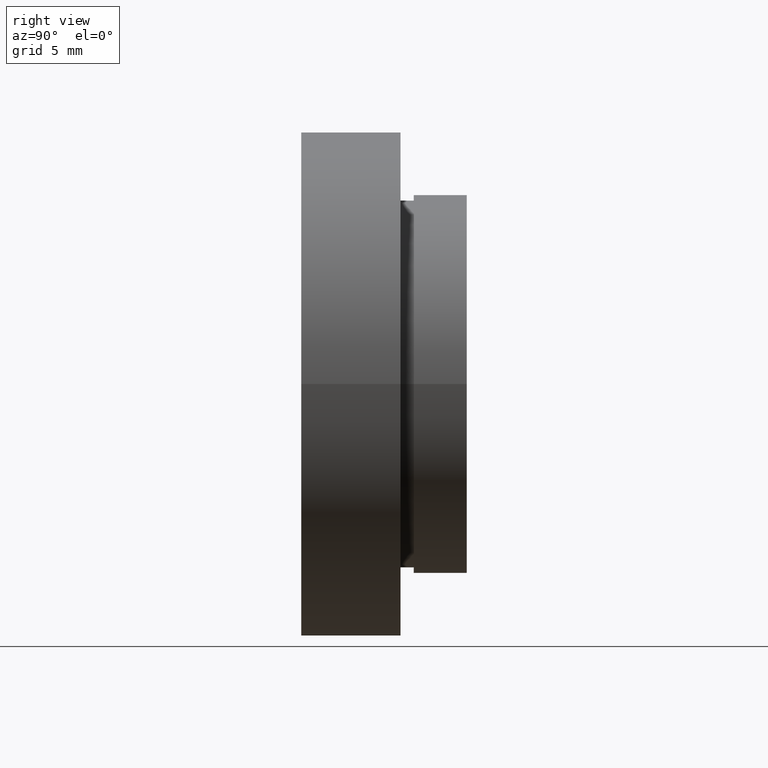
[diagram: clean part render]
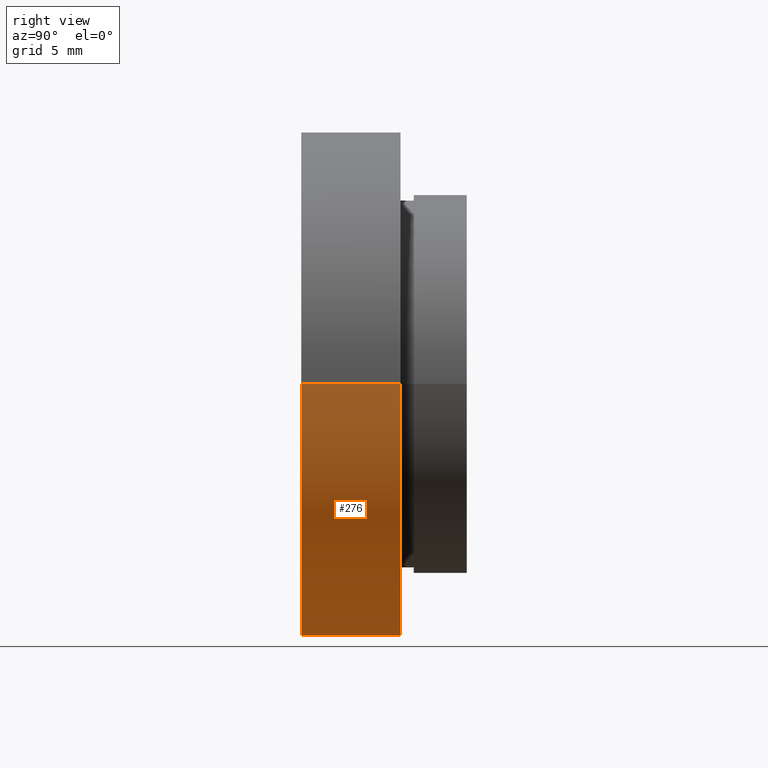
[diagram: same view with one face highlighted and labeled with its STEP entity id]
A machine part, right view. The second image highlights one B-rep face of the part: STEP entity #276.
In plain terms, the highlighted cylindrical surface (partial cylindrical patch) has radius 19.05 mm, axis along (-0, 1, -0).
Its self-contained STEP definition (entity closure, byte-faithful):
#5 = CARTESIAN_POINT ( 'NONE',  ( 19.05000000000000400, -1.136494799577910300E-015, 2.332952152375708400E-015 ) ) ;
#14 = ORIENTED_EDGE ( 'NONE', *, *, #306, .T. ) ;
#32 = CYLINDRICAL_SURFACE ( 'NONE', #153, 19.05000000000000400 ) ;
#55 = ORIENTED_EDGE ( 'NONE', *, *, #564, .F. ) ;
#77 = LINE ( 'NONE', #567, #282 ) ;
#87 = CARTESIAN_POINT ( 'NONE',  ( 1.149455719078123100E-015, 7.499999999999996400, 0.0000000000000000000 ) ) ;
#92 = DIRECTION ( 'NONE',  ( -1.224646799147351000E-016, 1.000000000000000000, -0.0000000000000000000 ) ) ;
#94 = LINE ( 'NONE', #618, #586 ) ;
#105 = ORIENTED_EDGE ( 'NONE', *, *, #588, .T. ) ;
#119 = VERTEX_POINT ( 'NONE', #372 ) ;
#128 = EDGE_CURVE ( 'NONE', #326, #589, #569, .T. ) ;
#136 = DIRECTION ( 'NONE',  ( -1.000000000000000000, -1.365923996832131400E-016, 0.0000000000000000000 ) ) ;
#153 = AXIS2_PLACEMENT_3D ( 'NONE', #432, #201, #571 ) ;
#161 = FACE_OUTER_BOUND ( 'NONE', #270, .T. ) ;
#201 = DIRECTION ( 'NONE',  ( -1.224646799147351000E-016, 1.000000000000000000, -0.0000000000000000000 ) ) ;
#252 = AXIS2_PLACEMENT_3D ( 'NONE', #446, #535, #390 ) ;
#270 = EDGE_LOOP ( 'NONE', ( #55, #14, #105, #612 ) ) ;
#276 = ADVANCED_FACE ( 'NONE', ( #161 ), #32, .T. ) ;
#282 = VECTOR ( 'NONE', #616, 1000.000000000000000 ) ;
#306 = EDGE_CURVE ( 'NONE', #347, #119, #374, .T. ) ;
#326 = VERTEX_POINT ( 'NONE', #439 ) ;
#347 = VERTEX_POINT ( 'NONE', #5 ) ;
#372 = CARTESIAN_POINT ( 'NONE',  ( -19.04999999999999700, -5.802399104329318300E-015, 0.0000000000000000000 ) ) ;
#374 = CIRCLE ( 'NONE', #252, 19.05000000000000100 ) ;
#390 = DIRECTION ( 'NONE',  ( -1.000000000000000000, -1.224646799147351200E-016, 0.0000000000000000000 ) ) ;
#426 = DIRECTION ( 'NONE',  ( -1.224646799147351000E-016, 1.000000000000000000, -0.0000000000000000000 ) ) ;
#432 = CARTESIAN_POINT ( 'NONE',  ( 0.0000000000000000000, 16.88601823708207700, 0.0000000000000000000 ) ) ;
#439 = CARTESIAN_POINT ( 'NONE',  ( 19.05000000000000400, 7.499999999999999100, 2.332952152375708400E-015 ) ) ;
#446 = CARTESIAN_POINT ( 'NONE',  ( 2.067940818438636500E-015, -3.469446951953614200E-015, 0.0000000000000000000 ) ) ;
#447 = AXIS2_PLACEMENT_3D ( 'NONE', #87, #426, #136 ) ;
#484 = CARTESIAN_POINT ( 'NONE',  ( -19.05000000000000400, 7.499999999999993800, 0.0000000000000000000 ) ) ;
#535 = DIRECTION ( 'NONE',  ( -1.224646799147351000E-016, 1.000000000000000000, -0.0000000000000000000 ) ) ;
#564 = EDGE_CURVE ( 'NONE', #347, #326, #94, .T. ) ;
#567 = CARTESIAN_POINT ( 'NONE',  ( -19.05000000000000400, 16.88601823708207300, 0.0000000000000000000 ) ) ;
#569 = CIRCLE ( 'NONE', #447, 19.05000000000000400 ) ;
#571 = DIRECTION ( 'NONE',  ( -1.000000000000000000, -1.821231995776175000E-016, 0.0000000000000000000 ) ) ;
#586 = VECTOR ( 'NONE', #92, 1000.000000000000000 ) ;
#588 = EDGE_CURVE ( 'NONE', #119, #589, #77, .T. ) ;
#589 = VERTEX_POINT ( 'NONE', #484 ) ;
#612 = ORIENTED_EDGE ( 'NONE', *, *, #128, .F. ) ;
#616 = DIRECTION ( 'NONE',  ( -1.224646799147351000E-016, 1.000000000000000000, -0.0000000000000000000 ) ) ;
#618 = CARTESIAN_POINT ( 'NONE',  ( 19.05000000000000400, 16.88601823708208000, 2.332952152375708400E-015 ) ) ;